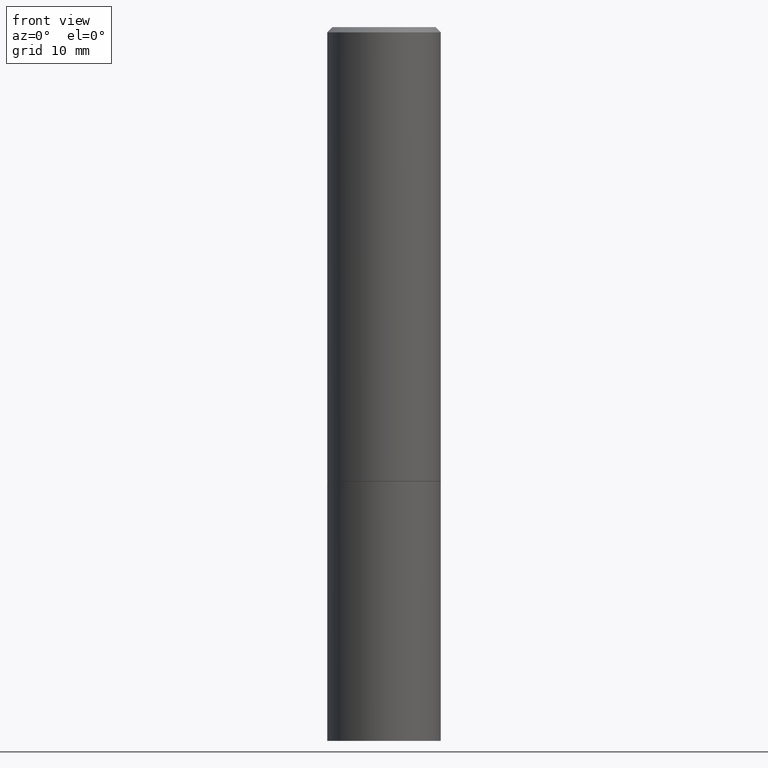
[diagram: clean part render]
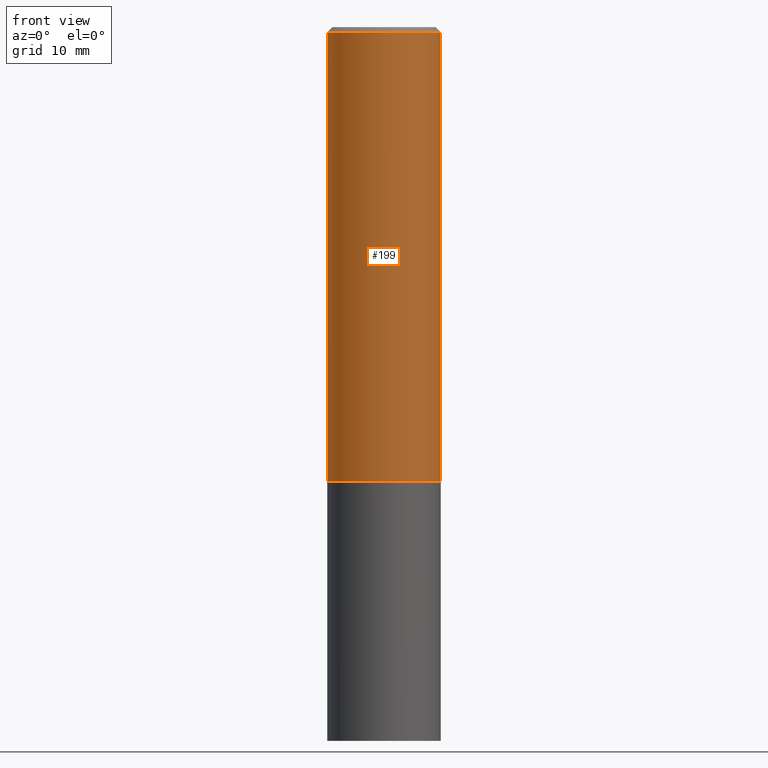
[diagram: same view with one face highlighted and labeled with its STEP entity id]
A machine part, front view. The second image highlights one B-rep face of the part: STEP entity #199.
In plain terms, the highlighted cylindrical surface (partial cylindrical patch) has radius 5.5562 mm, axis along (-0, 0, 1).
Its self-contained STEP definition (entity closure, byte-faithful):
#14 = AXIS2_PLACEMENT_3D ( 'NONE', #98, #36, #237 ) ;
#15 = EDGE_LOOP ( 'NONE', ( #190, #91, #109, #60 ) ) ;
#17 = FACE_OUTER_BOUND ( 'NONE', #15, .T. ) ;
#25 = VERTEX_POINT ( 'NONE', #57 ) ;
#32 = AXIS2_PLACEMENT_3D ( 'NONE', #184, #185, #181 ) ;
#36 = DIRECTION ( 'NONE',  ( -2.445468806185136597E-29, 3.491481338843145583E-15, 1.000000000000000000 ) ) ;
#40 = CYLINDRICAL_SURFACE ( 'NONE', #223, 0.2187499999999998890 ) ;
#46 = VECTOR ( 'NONE', #291, 39.37007874015748143 ) ;
#57 = CARTESIAN_POINT ( 'NONE',  ( -0.2187500000000000000, -1.533903009731541155E-15, -1.748999999999999888 ) ) ;
#60 = ORIENTED_EDGE ( 'NONE', *, *, #154, .F. ) ;
#65 = CARTESIAN_POINT ( 'NONE',  ( 0.2187500000000000000, -7.634123947380530929E-15, -1.748999999999999888 ) ) ;
#70 = CARTESIAN_POINT ( 'NONE',  ( 0.000000000000000000, 0.000000000000000000, 0.000000000000000000 ) ) ;
#78 = VERTEX_POINT ( 'NONE', #65 ) ;
#80 = DIRECTION ( 'NONE',  ( -2.445468806185136877E-29, 3.491481338843145188E-15, 1.000000000000000000 ) ) ;
#82 = EDGE_CURVE ( 'NONE', #25, #78, #264, .T. ) ;
#91 = ORIENTED_EDGE ( 'NONE', *, *, #82, .T. ) ;
#98 = CARTESIAN_POINT ( 'NONE',  ( 4.890937612370287172E-31, -6.982962677686310098E-17, -0.02000000000000005593 ) ) ;
#109 = ORIENTED_EDGE ( 'NONE', *, *, #267, .T. ) ;
#135 = DIRECTION ( 'NONE',  ( -2.445468806185136597E-29, 3.491481338843145583E-15, 1.000000000000000000 ) ) ;
#145 = VERTEX_POINT ( 'NONE', #315 ) ;
#154 = EDGE_CURVE ( 'NONE', #304, #145, #246, .T. ) ;
#161 = LINE ( 'NONE', #346, #298 ) ;
#181 = DIRECTION ( 'NONE',  ( 1.000000000000000000, -6.982962677686267499E-15, 0.000000000000000000 ) ) ;
#184 = CARTESIAN_POINT ( 'NONE',  ( 4.277124942017804002E-29, -6.106600861636660875E-15, -1.748999999999999888 ) ) ;
#185 = DIRECTION ( 'NONE',  ( -2.445468806185136597E-29, 3.491481338843145583E-15, 1.000000000000000000 ) ) ;
#190 = ORIENTED_EDGE ( 'NONE', *, *, #280, .F. ) ;
#199 = ADVANCED_FACE ( 'NONE', ( #17 ), #40, .T. ) ;
#211 = CARTESIAN_POINT ( 'NONE',  ( -0.2187499999999997780, 1.457693458967006164E-15, -0.02000000000000005593 ) ) ;
#214 = CARTESIAN_POINT ( 'NONE',  ( -0.2187499999999998890, 1.554312234475218368E-15, -1.076017050993260062E-29 ) ) ;
#223 = AXIS2_PLACEMENT_3D ( 'NONE', #70, #135, #274 ) ;
#237 = DIRECTION ( 'NONE',  ( 1.000000000000000000, -6.982962677686266711E-15, 0.000000000000000000 ) ) ;
#246 = CIRCLE ( 'NONE', #14, 0.2187499999999997780 ) ;
#264 = CIRCLE ( 'NONE', #32, 0.2187500000000000000 ) ;
#267 = EDGE_CURVE ( 'NONE', #78, #145, #161, .T. ) ;
#274 = DIRECTION ( 'NONE',  ( 1.000000000000000000, -6.982962677686266711E-15, 4.876176775795935793E-29 ) ) ;
#280 = EDGE_CURVE ( 'NONE', #25, #304, #321, .T. ) ;
#291 = DIRECTION ( 'NONE',  ( -2.445468806185136877E-29, 3.491481338843145188E-15, 1.000000000000000000 ) ) ;
#298 = VECTOR ( 'NONE', #80, 39.37007874015748143 ) ;
#304 = VERTEX_POINT ( 'NONE', #211 ) ;
#315 = CARTESIAN_POINT ( 'NONE',  ( 0.2187499999999997780, -1.570563563789384053E-15, -0.02000000000000005593 ) ) ;
#321 = LINE ( 'NONE', #214, #46 ) ;
#346 = CARTESIAN_POINT ( 'NONE',  ( 0.2187499999999998890, -1.527523085743870054E-15, 1.066663669705360464E-29 ) ) ;